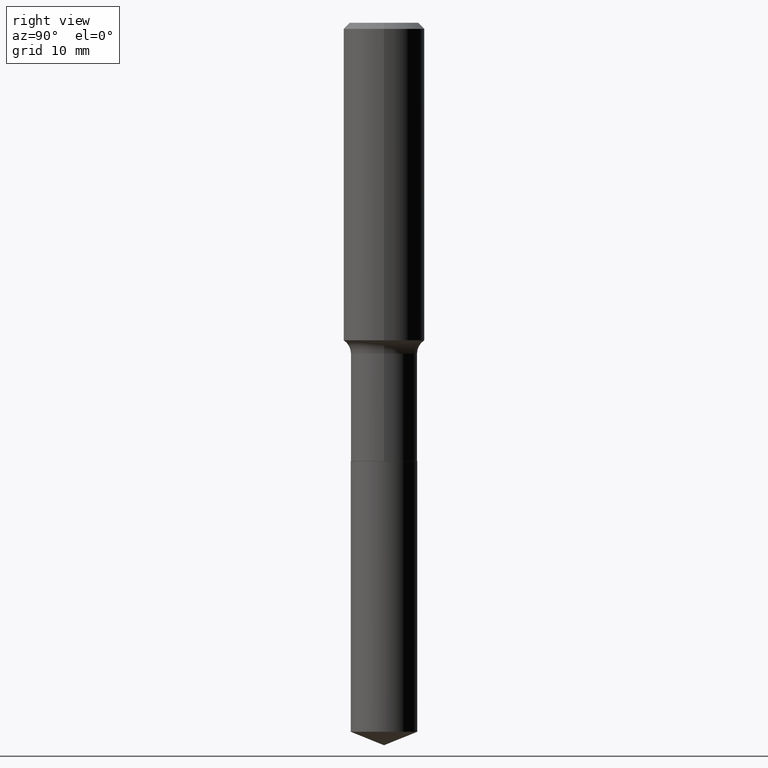
[diagram: clean part render]
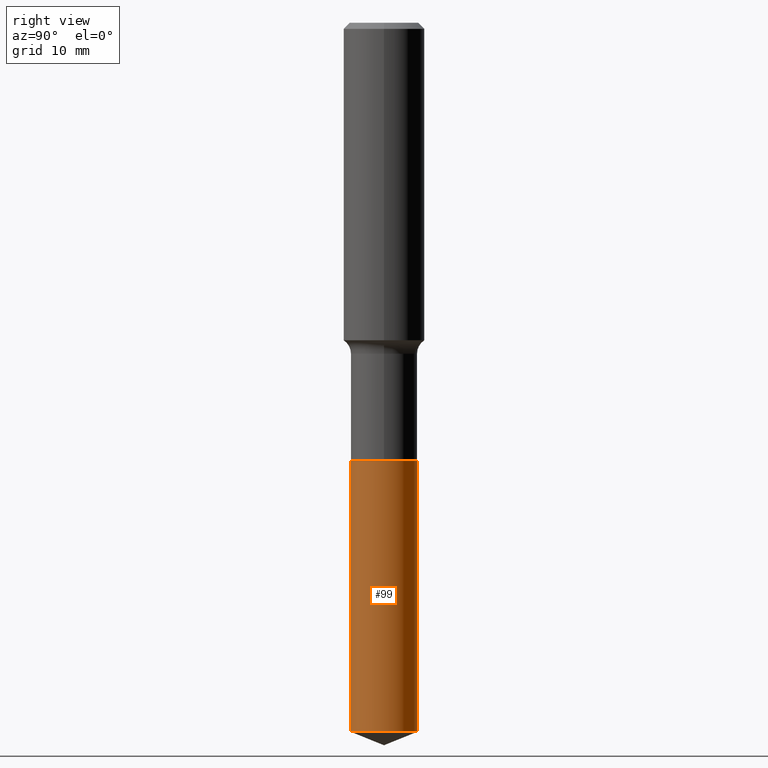
[diagram: same view with one face highlighted and labeled with its STEP entity id]
A machine part, right view. The second image highlights one B-rep face of the part: STEP entity #99.
In plain terms, the highlighted cylindrical surface (edge-blend (fillet) strip) has radius 4.0996 mm, axis along (-0, 0, 1).
Its self-contained STEP definition (entity closure, byte-faithful):
#5 = CYLINDRICAL_SURFACE ( 'NONE', #120, 0.1613999999999999879 ) ;
#16 = CARTESIAN_POINT ( 'NONE',  ( 5.198822135068982087E-29, -7.422540178246643119E-15, -2.125899999999999679 ) ) ;
#26 = VERTEX_POINT ( 'NONE', #252 ) ;
#45 = CARTESIAN_POINT ( 'NONE',  ( -1.127050176178511266E-15, -0.1614000000000073987, -2.125899999999999235 ) ) ;
#73 = EDGE_LOOP ( 'NONE', ( #381, #329, #183, #246 ) ) ;
#81 = CARTESIAN_POINT ( 'NONE',  ( -1.127050176178479119E-15, -0.1614000000000120061, -3.438690167150205479 ) ) ;
#95 = CARTESIAN_POINT ( 'NONE',  ( -1.127050176178511266E-15, -0.1614000000000073987, -2.125899999999999235 ) ) ;
#97 = CARTESIAN_POINT ( 'NONE',  ( 5.198822135068982087E-29, -7.422540178246643119E-15, -2.125899999999999679 ) ) ;
#99 = ADVANCED_FACE ( 'NONE', ( #277 ), #5, .T. ) ;
#120 = AXIS2_PLACEMENT_3D ( 'NONE', #16, #352, #351 ) ;
#127 = VECTOR ( 'NONE', #194, 39.37007874015748143 ) ;
#137 = VERTEX_POINT ( 'NONE', #95 ) ;
#154 = LINE ( 'NONE', #342, #127 ) ;
#155 = VECTOR ( 'NONE', #349, 39.37007874015748143 ) ;
#178 = VERTEX_POINT ( 'NONE', #81 ) ;
#183 = ORIENTED_EDGE ( 'NONE', *, *, #263, .F. ) ;
#186 = EDGE_CURVE ( 'NONE', #178, #137, #232, .T. ) ;
#187 = DIRECTION ( 'NONE',  ( -6.982962677686266711E-15, -1.000000000000000000, 3.385189583227092077E-15 ) ) ;
#191 = DIRECTION ( 'NONE',  ( -2.445359563184350382E-29, 3.491637781037997062E-15, 1.000000000000000000 ) ) ;
#194 = DIRECTION ( 'NONE',  ( -2.445359563184350382E-29, 3.491637781037997457E-15, 1.000000000000000000 ) ) ;
#232 = LINE ( 'NONE', #45, #155 ) ;
#233 = AXIS2_PLACEMENT_3D ( 'NONE', #262, #191, #268 ) ;
#246 = ORIENTED_EDGE ( 'NONE', *, *, #186, .F. ) ;
#252 = CARTESIAN_POINT ( 'NONE',  ( 1.146815975516885825E-15, 0.1613999999999925772, -2.125900000000000567 ) ) ;
#262 = CARTESIAN_POINT ( 'NONE',  ( 8.409066124764119414E-29, -1.200632792444349016E-14, -3.438690167150205923 ) ) ;
#263 = EDGE_CURVE ( 'NONE', #137, #26, #292, .T. ) ;
#268 = DIRECTION ( 'NONE',  ( -6.982962677686266711E-15, -1.000000000000000000, 3.385189583227092077E-15 ) ) ;
#277 = FACE_OUTER_BOUND ( 'NONE', #73, .T. ) ;
#292 = CIRCLE ( 'NONE', #489, 0.1613999999999999879 ) ;
#294 = DIRECTION ( 'NONE',  ( -2.445359563184350382E-29, 3.491637781037997062E-15, 1.000000000000000000 ) ) ;
#297 = CIRCLE ( 'NONE', #233, 0.1613999999999999879 ) ;
#329 = ORIENTED_EDGE ( 'NONE', *, *, #431, .T. ) ;
#342 = CARTESIAN_POINT ( 'NONE',  ( 1.146815975516853285E-15, 0.1613999999999925772, -2.125900000000000567 ) ) ;
#349 = DIRECTION ( 'NONE',  ( -2.445359563184350382E-29, 3.491637781037997457E-15, 1.000000000000000000 ) ) ;
#351 = DIRECTION ( 'NONE',  ( -6.982962677686266711E-15, -1.000000000000000000, 3.385189583227092077E-15 ) ) ;
#352 = DIRECTION ( 'NONE',  ( -2.445359563184350382E-29, 3.491637781037997062E-15, 1.000000000000000000 ) ) ;
#364 = EDGE_CURVE ( 'NONE', #178, #434, #297, .T. ) ;
#381 = ORIENTED_EDGE ( 'NONE', *, *, #364, .T. ) ;
#431 = EDGE_CURVE ( 'NONE', #434, #26, #154, .T. ) ;
#434 = VERTEX_POINT ( 'NONE', #450 ) ;
#450 = CARTESIAN_POINT ( 'NONE',  ( 1.146815975516885825E-15, 0.1613999999999879698, -3.438690167150206367 ) ) ;
#489 = AXIS2_PLACEMENT_3D ( 'NONE', #97, #294, #187 ) ;